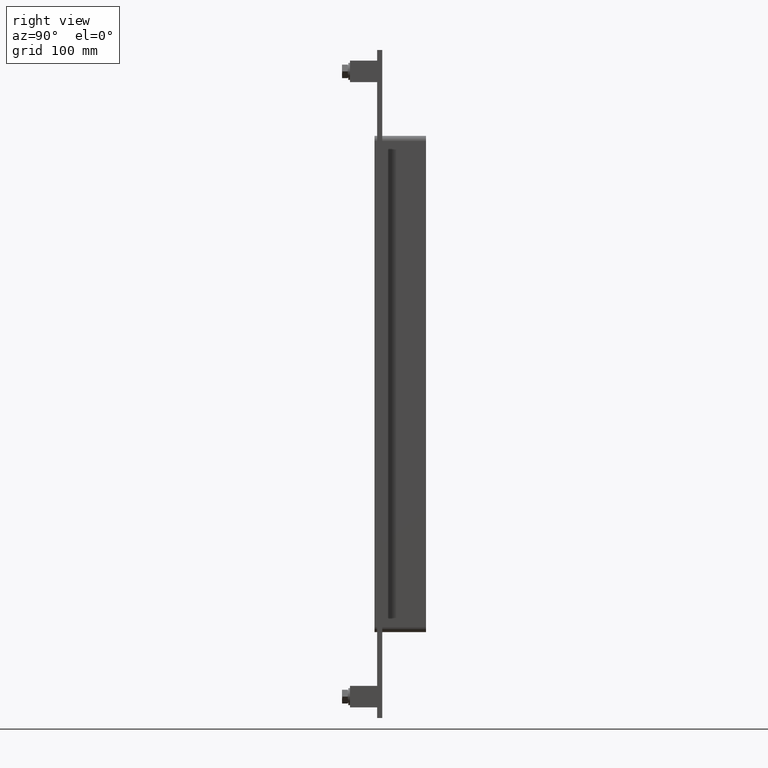
[diagram: clean part render]
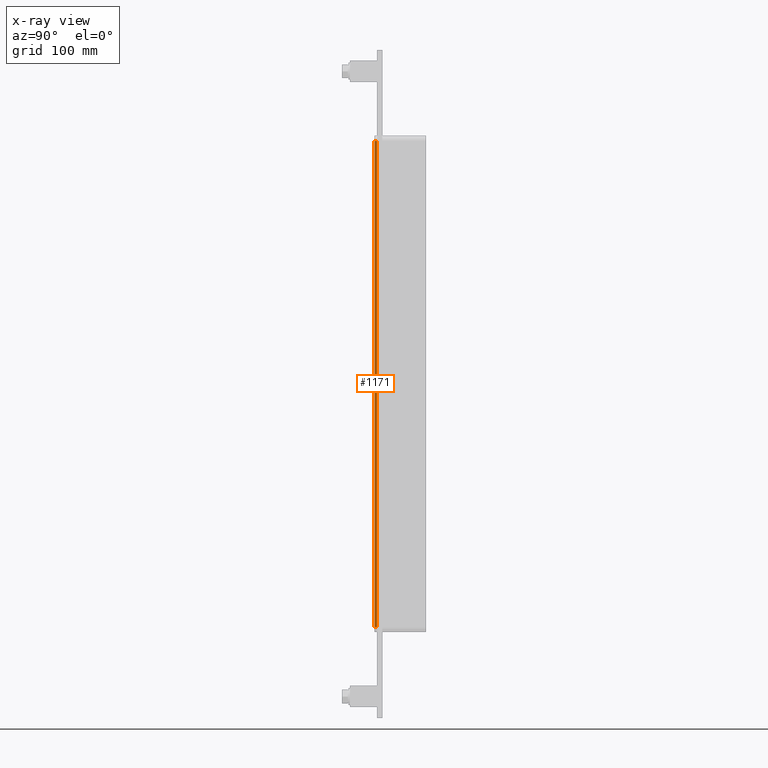
[diagram: x-ray — body ghosted, one internal face saturated and labeled with its STEP entity id]
A machine part, right view, then the same camera in x-ray: the body is ghosted and one INTERNAL B-rep face — a face not visible from any outside direction — is saturated and labeled: STEP entity #1171.
In plain terms, the highlighted planar face has unit normal (1, 0, 0).
Its self-contained STEP definition (entity closure, byte-faithful):
#885=CARTESIAN_POINT('',(66.249999999999986,0.0,283.00000000000006));
#886=VERTEX_POINT('',#885);
#894=CARTESIAN_POINT('',(66.249999999999986,0.0,-283.0));
#895=VERTEX_POINT('',#894);
#896=CARTESIAN_POINT('',(66.249999999999986,0.0,-283.0));
#897=DIRECTION('',(0.0,0.0,1.0));
#898=VECTOR('',#897,566.0);
#899=LINE('',#896,#898);
#900=EDGE_CURVE('',#895,#886,#899,.T.);
#1042=CARTESIAN_POINT('',(66.249999999999986,-3.0,-283.0));
#1043=VERTEX_POINT('',#1042);
#1044=CARTESIAN_POINT('',(66.249999999999986,0.0,-283.0));
#1045=DIRECTION('',(0.0,-1.0,0.0));
#1046=VECTOR('',#1045,3.0);
#1047=LINE('',#1044,#1046);
#1048=EDGE_CURVE('',#895,#1043,#1047,.T.);
#1148=CARTESIAN_POINT('',(66.249999999999986,0.0,289.00000000000006));
#1149=DIRECTION('',(1.0,0.0,0.0));
#1150=DIRECTION('',(0.0,0.0,-1.0));
#1151=AXIS2_PLACEMENT_3D('',#1148,#1149,#1150);
#1152=PLANE('',#1151);
#1153=ORIENTED_EDGE('',*,*,#900,.T.);
#1154=CARTESIAN_POINT('',(66.249999999999986,-3.0,283.00000000000006));
#1155=VERTEX_POINT('',#1154);
#1156=CARTESIAN_POINT('',(66.249999999999986,-3.0,283.00000000000006));
#1157=DIRECTION('',(0.0,1.0,0.0));
#1158=VECTOR('',#1157,3.0);
#1159=LINE('',#1156,#1158);
#1160=EDGE_CURVE('',#1155,#886,#1159,.T.);
#1161=ORIENTED_EDGE('',*,*,#1160,.F.);
#1162=CARTESIAN_POINT('',(66.249999999999986,-3.0,-282.99999999999994));
#1163=DIRECTION('',(0.0,0.0,1.0));
#1164=VECTOR('',#1163,566.0);
#1165=LINE('',#1162,#1164);
#1166=EDGE_CURVE('',#1043,#1155,#1165,.T.);
#1167=ORIENTED_EDGE('',*,*,#1166,.F.);
#1168=ORIENTED_EDGE('',*,*,#1048,.F.);
#1169=EDGE_LOOP('',(#1153,#1161,#1167,#1168));
#1170=FACE_OUTER_BOUND('',#1169,.T.);
#1171=ADVANCED_FACE('',(#1170),#1152,.T.);